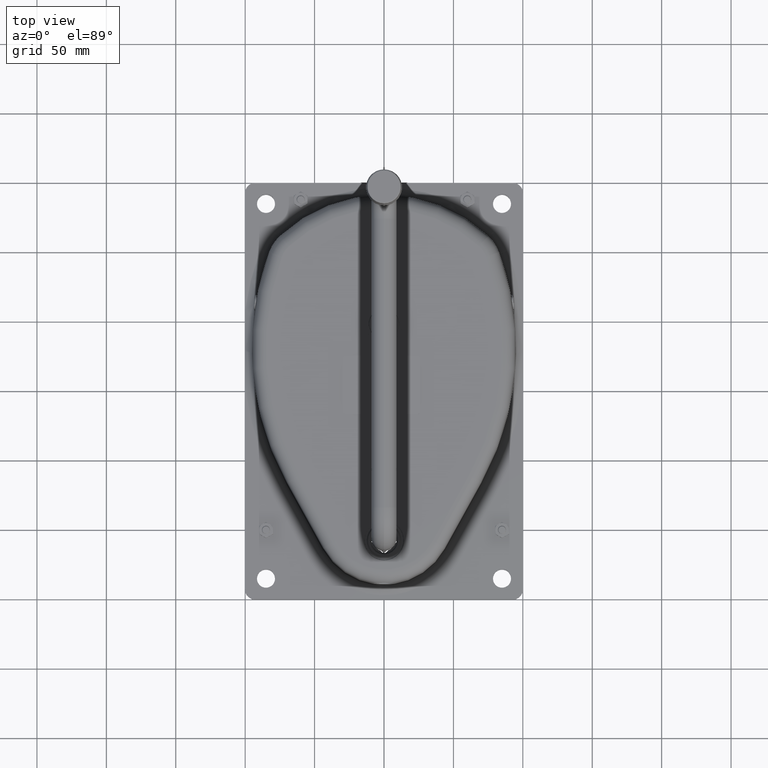
[diagram: clean part render]
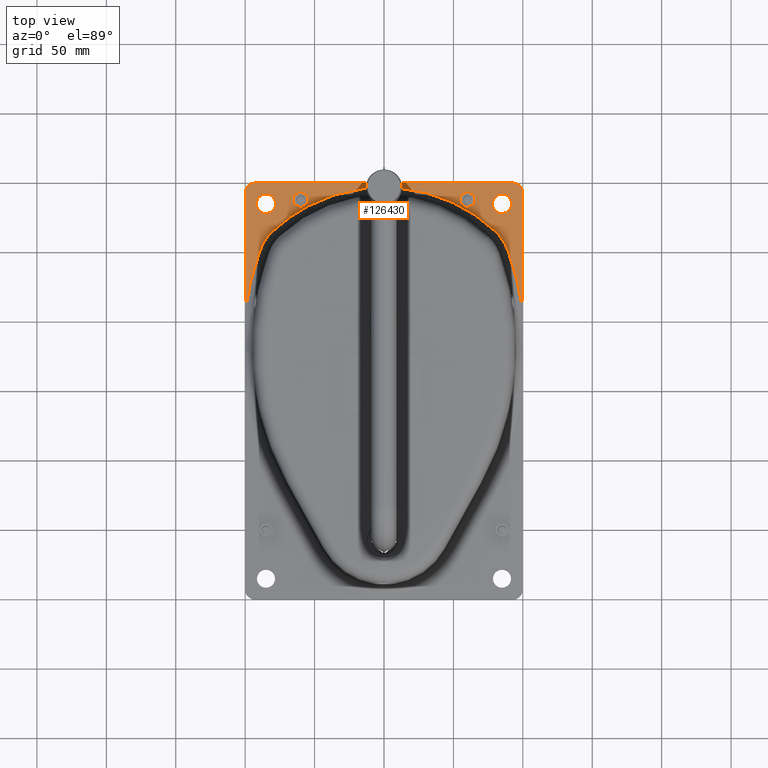
[diagram: same view with one face highlighted and labeled with its STEP entity id]
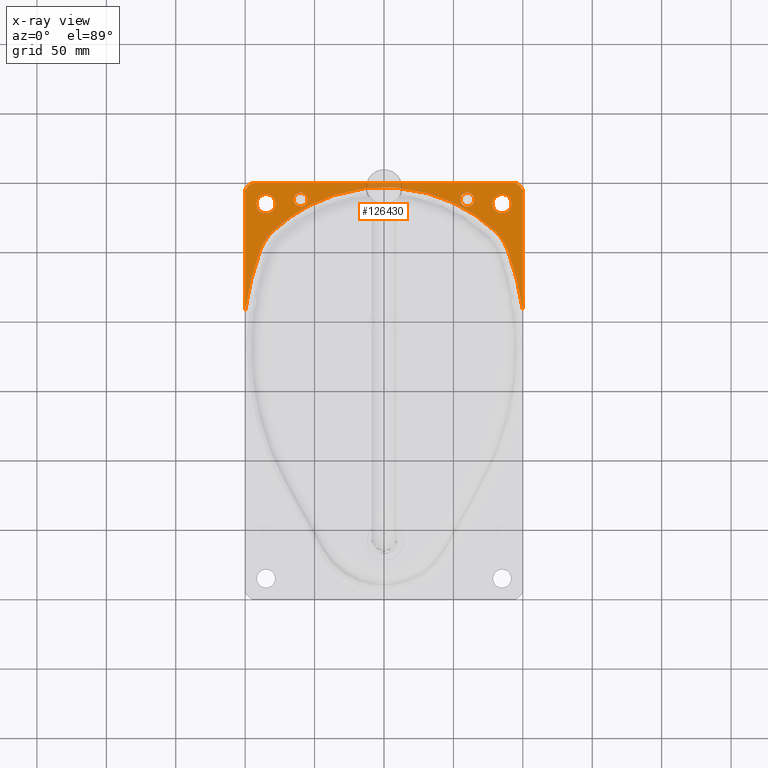
[diagram: x-ray of the same camera — body ghosted, the highlighted face saturated]
A machine part, top view. The second image highlights one B-rep face of the part: STEP entity #126430.
The next image is the same camera in x-ray: the body ghosted, the highlighted face saturated — about 2% of this face is hidden behind the body in this view.
In plain terms, the highlighted planar face has unit normal (0, 0, 1).
Its self-contained STEP definition (entity closure, byte-faithful):
#116550=CARTESIAN_POINT('',(98.1871716525991,-104.729553244837,80.));
#116560=DIRECTION('',(0.0174524064372835,0.999847695156391,0.));
#116570=VECTOR('',#116560,1.);
#116580=LINE('',#116550,#116570);
#117610=CARTESIAN_POINT('',(99.780482113474,-13.4488580754262,80.));
#117620=VERTEX_POINT('',#117610);
#117650=CARTESIAN_POINT('',(98.3093384976601,-97.7306193787422,80.));
#117660=VERTEX_POINT('',#117650);
#117670=EDGE_CURVE('',#117660,#117620,#116580,.T.);
#118950=CARTESIAN_POINT('',(-101.660200533618,-94.2401380912856,80.));
#118960=VERTEX_POINT('',#118950);
#118990=CARTESIAN_POINT('',(-96.5466454474941,198.715236589537,80.));
#119000=DIRECTION('',(-0.0174524064372835,-0.999847695156391,0.));
#119010=VECTOR('',#119000,1.);
#119020=LINE('',#118990,#119010);
#119030=CARTESIAN_POINT('',(-100.189056918394,-9.95837682173562,80.));
#119040=VERTEX_POINT('',#119030);
#119050=EDGE_CURVE('',#119040,#118960,#119020,.T.);
#121190=CARTESIAN_POINT('',(-96.5466454474941,198.715236589537,80.));
#121200=DIRECTION('',(0.,-0.,-1.));
#121210=DIRECTION('',(0.999847695156391,-0.0174524064372835,0.));
#121220=AXIS2_PLACEMENT_3D('',#121190,#121200,#121210);
#121230=PLANE('',#121220);
#122710=CARTESIAN_POINT('',(-90.3200556012915,-52.5797952541012,80.));
#122720=CARTESIAN_POINT('',(-90.4410247330788,-52.2299720672284,80.));
#122730=CARTESIAN_POINT('',(-90.5613935581654,-51.8799412792595,80.));
#122740=CARTESIAN_POINT('',(-93.1036679221178,-44.4102403549494,80.));
#122750=CARTESIAN_POINT('',(-95.1371604526582,-37.1634754640695,80.));
#122760=CARTESIAN_POINT('',(-98.6279890318529,-21.4846917592984,80.));
#122770=CARTESIAN_POINT('',(-99.9663917189243,-13.0410837653149,80.));
#122780=CARTESIAN_POINT('',(-101.592365611007,3.963061561107,80.));
#122790=CARTESIAN_POINT('',(-101.87837841351,12.5073013977237,80.));
#122800=CARTESIAN_POINT('',(-101.393175298389,29.5821169851113,80.));
#122810=CARTESIAN_POINT('',(-100.622424419963,38.0963275066738,80.));
#122820=CARTESIAN_POINT('',(-98.0334641733759,54.98069999351,80.));
#122830=CARTESIAN_POINT('',(-96.2177361747872,63.3346792583405,80.));
#122840=CARTESIAN_POINT('',(-91.5646099776627,79.7704075971235,80.));
#122850=CARTESIAN_POINT('',(-88.7316715331054,87.8364039702585,80.));
#122860=CARTESIAN_POINT('',(-82.2295584163411,103.231153784188,80.));
#122870=CARTESIAN_POINT('',(-78.6077773218684,110.562905684943,80.));
#122880=CARTESIAN_POINT('',(-74.3790964269654,117.98268360638,80.));
#122890=CARTESIAN_POINT('',(-74.194800907864,118.30368817892,80.));
#122900=CARTESIAN_POINT('',(-74.0099550838915,118.624375537057,80.));
#122910=B_SPLINE_CURVE_WITH_KNOTS('',3,(#122710,#122720,#122730,#122740,
#122750,#122760,#122770,#122780,#122790,#122800,#122810,#122820,#122830,
#122840,#122850,#122860,#122870,#122880,#122890,#122900),.UNSPECIFIED.,
.F.,.F.,(4,2,2,2,2,2,2,2,2,4),(0.,1.09154099031254,23.268442179075,
48.4497372926723,73.6310324062694,98.812327522146,123.993622638023,
149.1749177539,173.264853735063,174.356256054814),.UNSPECIFIED.);
#123440=CARTESIAN_POINT('',(78.1048012218286,115.969202589201,80.));
#123450=CARTESIAN_POINT('',(78.2783435235066,115.642257850143,80.));
#123460=CARTESIAN_POINT('',(78.4513247808119,115.315015293084,80.));
#123470=CARTESIAN_POINT('',(82.1166719008934,108.327539262062,80.));
#123480=CARTESIAN_POINT('',(85.2449121594937,101.481751791104,80.));
#123490=CARTESIAN_POINT('',(91.1151911316954,86.5301643393107,80.));
#123500=CARTESIAN_POINT('',(93.7415130621304,78.3945469179629,80.));
#123510=CARTESIAN_POINT('',(97.9739898743574,61.8455019481236,80.));
#123520=CARTESIAN_POINT('',(99.5760881704265,53.4479357079229,80.));
#123530=CARTESIAN_POINT('',(101.733629224764,36.503031871381,80.));
#123540=CARTESIAN_POINT('',(102.287004103772,27.9719349912778,80.));
#123550=CARTESIAN_POINT('',(102.336615614319,10.8902989987907,80.));
#123560=CARTESIAN_POINT('',(101.832804696076,2.35613165258269,80.));
#123570=CARTESIAN_POINT('',(99.7737279880781,-14.60101883305,80.));
#123580=CARTESIAN_POINT('',(98.220435704984,-23.0077495185009,80.));
#123590=CARTESIAN_POINT('',(94.1737920846206,-39.2219553976427,80.));
#123600=CARTESIAN_POINT('',(91.7277288157936,-47.0250739239347,80.));
#123610=CARTESIAN_POINT('',(88.6956407748134,-55.0088880899112,80.));
#123620=CARTESIAN_POINT('',(88.5631299669679,-55.3545029902722,80.));
#123630=CARTESIAN_POINT('',(88.430026570216,-55.6998895065706,80.));
#123640=B_SPLINE_CURVE_WITH_KNOTS('',3,(#123440,#123450,#123460,#123470,
#123480,#123490,#123500,#123510,#123520,#123530,#123540,#123550,#123560,
#123570,#123580,#123590,#123600,#123610,#123620,#123630),.UNSPECIFIED.,
.F.,.F.,(4,2,2,2,2,2,2,2,2,4),(0.,1.09154099010989,23.2684421705911,
48.449737284188,73.6310323977846,98.812327515783,123.993622633781,
149.17491775178,173.264853736531,174.356256054546),.UNSPECIFIED.);
#123950=CARTESIAN_POINT('',(-79.5239319886793,-86.6253094716546,80.));
#123960=VERTEX_POINT('',#123950);
#123990=CARTESIAN_POINT('',(-86.522865854774,-86.5031426265936,80.));
#124000=DIRECTION('',(0.,-0.,-1.));
#124010=DIRECTION('',(0.999847695156391,-0.0174524064372835,0.));
#124020=AXIS2_PLACEMENT_3D('',#123990,#124000,#124010);
#124030=CIRCLE('',#124020,7.);
#124040=CARTESIAN_POINT('',(-93.5217997208687,-86.3809757815326,80.));
#124050=VERTEX_POINT('',#124040);
#124060=EDGE_CURVE('',#124050,#123960,#124030,.T.);
#124180=CARTESIAN_POINT('',(83.4512423218125,-89.4700517209318,80.));
#124190=DIRECTION('',(0.,-0.,-1.));
#124200=DIRECTION('',(0.999847695156391,-0.0174524064372835,0.));
#124210=AXIS2_PLACEMENT_3D('',#124180,#124190,#124200);
#124220=CIRCLE('',#124210,7.);
#124230=CARTESIAN_POINT('',(90.4501761879072,-89.5922185659928,80.));
#124240=VERTEX_POINT('',#124230);
#124250=CARTESIAN_POINT('',(76.4523084557178,-89.3478848758708,80.));
#124260=VERTEX_POINT('',#124250);
#124270=EDGE_CURVE('',#124240,#124260,#124220,.T.);
#124280=ORIENTED_EDGE('',*,*,#124270,.F.);
#124290=EDGE_CURVE('',#124260,#124240,#124220,.T.);
#124300=ORIENTED_EDGE('',*,*,#124290,.F.);
#124310=EDGE_LOOP('',(#124300,#124280));
#124320=FACE_BOUND('',#124310,.T.);
#124330=CARTESIAN_POINT('',(-61.5790306951761,-89.9389958729949,
79.9999999999999));
#124340=DIRECTION('',(3.20595505212568E-18,1.8366904192622E-16,-1.));
#124350=DIRECTION('',(-0.999847695156391,0.0174524064372835,
6.93334779979405E-33));
#124360=AXIS2_PLACEMENT_3D('',#124330,#124340,#124350);
#124370=CIRCLE('',#124360,5.0000000000001);
#124380=CARTESIAN_POINT('',(-59.0038403206257,-85.6531593694842,
79.9999999999999));
#124390=VERTEX_POINT('',#124380);
#124400=CARTESIAN_POINT('',(-56.5797922193941,-90.0262579051813,
79.9999999999999));
#124410=VERTEX_POINT('',#124400);
#124420=EDGE_CURVE('',#124390,#124410,#124370,.T.);
#124430=ORIENTED_EDGE('',*,*,#124420,.F.);
#124440=CARTESIAN_POINT('',(-61.5790306951761,-89.9389958729949,
79.9999999999999));
#124450=DIRECTION('',(3.20595505212568E-18,1.8366904192622E-16,-1.));
#124460=DIRECTION('',(-0.999847695156391,0.0174524064372835,
6.93334779979405E-33));
#124470=AXIS2_PLACEMENT_3D('',#124440,#124450,#124460);
#124480=CIRCLE('',#124470,5.0000000000001);
#124490=CARTESIAN_POINT('',(-59.1549825939444,-94.312094408692,
79.9999999999999));
#124500=VERTEX_POINT('',#124490);
#124510=EDGE_CURVE('',#124410,#124500,#124480,.T.);
#124520=ORIENTED_EDGE('',*,*,#124510,.F.);
#124530=CARTESIAN_POINT('',(-61.5790306951761,-89.9389958729949,
79.9999999999999));
#124540=DIRECTION('',(3.20595505212568E-18,1.8366904192622E-16,-1.));
#124550=DIRECTION('',(-0.999847695156391,0.0174524064372835,
6.93334779979405E-33));
#124560=AXIS2_PLACEMENT_3D('',#124530,#124540,#124550);
#124570=CIRCLE('',#124560,5.0000000000001);
#124580=CARTESIAN_POINT('',(-64.1542210697265,-94.2248323765055,
79.9999999999999));
#124590=VERTEX_POINT('',#124580);
#124600=EDGE_CURVE('',#124500,#124590,#124570,.T.);
#124610=ORIENTED_EDGE('',*,*,#124600,.F.);
#124620=CARTESIAN_POINT('',(-61.5790306951761,-89.9389958729949,
79.9999999999999));
#124630=DIRECTION('',(3.20595505212568E-18,1.8366904192622E-16,-1.));
#124640=DIRECTION('',(-0.999847695156391,0.0174524064372835,
6.93334779979405E-33));
#124650=AXIS2_PLACEMENT_3D('',#124620,#124630,#124640);
#124660=CIRCLE('',#124650,5.0000000000001);
#124670=CARTESIAN_POINT('',(-66.5782691709582,-89.8517338408084,
79.9999999999999));
#124680=VERTEX_POINT('',#124670);
#124690=EDGE_CURVE('',#124590,#124680,#124660,.T.);
#124700=ORIENTED_EDGE('',*,*,#124690,.F.);
#124710=CARTESIAN_POINT('',(-61.5790306951761,-89.9389958729949,
79.9999999999999));
#124720=DIRECTION('',(3.20595505212568E-18,1.8366904192622E-16,-1.));
#124730=DIRECTION('',(-0.999847695156391,0.0174524064372835,
6.93334779979405E-33));
#124740=AXIS2_PLACEMENT_3D('',#124710,#124720,#124730);
#124750=CIRCLE('',#124740,5.0000000000001);
#124760=CARTESIAN_POINT('',(-64.0030787964078,-85.5658973372978,
79.9999999999999));
#124770=VERTEX_POINT('',#124760);
#124780=EDGE_CURVE('',#124680,#124770,#124750,.T.);
#124790=ORIENTED_EDGE('',*,*,#124780,.F.);
#124800=CARTESIAN_POINT('',(-61.5790306951761,-89.9389958729949,
79.9999999999999));
#124810=DIRECTION('',(3.20595505212568E-18,1.8366904192622E-16,-1.));
#124820=DIRECTION('',(-0.999847695156391,0.0174524064372835,
6.93334779979405E-33));
#124830=AXIS2_PLACEMENT_3D('',#124800,#124810,#124820);
#124840=CIRCLE('',#124830,5.0000000000001);
#124850=EDGE_CURVE('',#124770,#124390,#124840,.T.);
#124860=ORIENTED_EDGE('',*,*,#124850,.F.);
#124870=EDGE_LOOP('',(#124860,#124790,#124700,#124610,#124520,#124430));
#124880=FACE_BOUND('',#124870,.T.);
#124890=CARTESIAN_POINT('',(58.4026927235909,-92.0332846454689,
79.9999999999999));
#124900=DIRECTION('',(3.20595505212568E-18,1.8366904192622E-16,-1.));
#124910=DIRECTION('',(-0.999847695156391,0.0174524064372835,
6.93334779979405E-33));
#124920=AXIS2_PLACEMENT_3D('',#124890,#124900,#124910);
#124930=CIRCLE('',#124920,5.0000000000001);
#124940=CARTESIAN_POINT('',(53.4034542478088,-91.9460226132824,
79.9999999999999));
#124950=VERTEX_POINT('',#124940);
#124960=CARTESIAN_POINT('',(55.9786446223592,-87.6601861097718,
79.9999999999999));
#124970=VERTEX_POINT('',#124960);
#124980=EDGE_CURVE('',#124950,#124970,#124930,.T.);
#124990=ORIENTED_EDGE('',*,*,#124980,.F.);
#125000=CARTESIAN_POINT('',(58.4026927235909,-92.0332846454689,
79.9999999999999));
#125010=DIRECTION('',(3.20595505212568E-18,1.8366904192622E-16,-1.));
#125020=DIRECTION('',(-0.999847695156391,0.0174524064372835,
6.93334779979405E-33));
#125030=AXIS2_PLACEMENT_3D('',#125000,#125010,#125020);
#125040=CIRCLE('',#125030,5.0000000000001);
#125050=CARTESIAN_POINT('',(60.9778830981412,-87.7474481419583,
79.9999999999999));
#125060=VERTEX_POINT('',#125050);
#125070=EDGE_CURVE('',#124970,#125060,#125040,.T.);
#125080=ORIENTED_EDGE('',*,*,#125070,.F.);
#125090=CARTESIAN_POINT('',(58.4026927235909,-92.0332846454689,
79.9999999999999));
#125100=DIRECTION('',(3.20595505212568E-18,1.8366904192622E-16,-1.));
#125110=DIRECTION('',(-0.999847695156391,0.0174524064372835,
6.93334779979405E-33));
#125120=AXIS2_PLACEMENT_3D('',#125090,#125100,#125110);
#125130=CIRCLE('',#125120,5.0000000000001);
#125140=CARTESIAN_POINT('',(63.4019311993729,-92.1205466776553,
79.9999999999999));
#125150=VERTEX_POINT('',#125140);
#125160=EDGE_CURVE('',#125060,#125150,#125130,.T.);
#125170=ORIENTED_EDGE('',*,*,#125160,.F.);
#125180=CARTESIAN_POINT('',(58.4026927235909,-92.0332846454689,
79.9999999999999));
#125190=DIRECTION('',(3.20595505212568E-18,1.8366904192622E-16,-1.));
#125200=DIRECTION('',(-0.999847695156391,0.0174524064372835,
6.93334779979405E-33));
#125210=AXIS2_PLACEMENT_3D('',#125180,#125190,#125200);
#125220=CIRCLE('',#125210,5.0000000000001);
#125230=CARTESIAN_POINT('',(60.8267408248225,-96.406383181166,
79.9999999999999));
#125240=VERTEX_POINT('',#125230);
#125250=EDGE_CURVE('',#125150,#125240,#125220,.T.);
#125260=ORIENTED_EDGE('',*,*,#125250,.F.);
#125270=CARTESIAN_POINT('',(58.4026927235909,-92.0332846454689,
79.9999999999999));
#125280=DIRECTION('',(3.20595505212568E-18,1.8366904192622E-16,-1.));
#125290=DIRECTION('',(-0.999847695156391,0.0174524064372835,
6.93334779979405E-33));
#125300=AXIS2_PLACEMENT_3D('',#125270,#125280,#125290);
#125310=CIRCLE('',#125300,5.0000000000001);
#125320=CARTESIAN_POINT('',(55.8275023490405,-96.3191211489795,
79.9999999999999));
#125330=VERTEX_POINT('',#125320);
#125340=EDGE_CURVE('',#125240,#125330,#125310,.T.);
#125350=ORIENTED_EDGE('',*,*,#125340,.F.);
#125360=CARTESIAN_POINT('',(58.4026927235909,-92.0332846454689,
79.9999999999999));
#125370=DIRECTION('',(3.20595505212568E-18,1.8366904192622E-16,-1.));
#125380=DIRECTION('',(-0.999847695156391,0.0174524064372835,
6.93334779979405E-33));
#125390=AXIS2_PLACEMENT_3D('',#125360,#125370,#125380);
#125400=CIRCLE('',#125390,5.0000000000001);
#125410=EDGE_CURVE('',#125330,#124950,#125400,.T.);
#125420=ORIENTED_EDGE('',*,*,#125410,.F.);
#125430=EDGE_LOOP('',(#125420,#125350,#125260,#125170,#125080,#124990));
#125440=FACE_BOUND('',#125430,.T.);
#125450=EDGE_CURVE('',#123960,#124050,#124030,.T.);
#125460=ORIENTED_EDGE('',*,*,#125450,.F.);
#125470=ORIENTED_EDGE('',*,*,#124060,.F.);
#125480=EDGE_LOOP('',(#125470,#125460));
#125490=FACE_BOUND('',#125480,.T.);
#125500=CARTESIAN_POINT('',(91.3104046315654,-97.6084525336812,80.));
#125510=DIRECTION('',(0.,-0.,-1.));
#125520=DIRECTION('',(0.999847695156391,-0.0174524064372835,0.));
#125530=AXIS2_PLACEMENT_3D('',#125500,#125510,#125520);
#125540=CIRCLE('',#125530,7.);
#125550=CARTESIAN_POINT('',(91.1882377865044,-104.607386399776,80.));
#125560=VERTEX_POINT('',#125550);
#125570=EDGE_CURVE('',#117660,#125560,#125540,.T.);
#125580=ORIENTED_EDGE('',*,*,#125570,.T.);
#125590=ORIENTED_EDGE('',*,*,#117670,.F.);
#125600=CARTESIAN_POINT('',(88.430026570216,-55.6998895065706,80.));
#125610=VERTEX_POINT('',#125600);
#125620=EDGE_CURVE('',#117620,#125610,#123640,.T.);
#125630=ORIENTED_EDGE('',*,*,#125620,.F.);
#125640=CARTESIAN_POINT('',(88.430026570216,-55.6998895065706,80.));
#125650=CARTESIAN_POINT('',(88.2829722407023,-56.0778836763042,80.));
#125660=CARTESIAN_POINT('',(88.1317461607493,-56.4542532071847,80.));
#125670=CARTESIAN_POINT('',(87.5328713401354,-57.8659842397067,80.));
#125680=CARTESIAN_POINT('',(87.0447510554527,-58.8845681548422,80.));
#125690=CARTESIAN_POINT('',(85.5073234915129,-61.7481517398949,80.));
#125700=CARTESIAN_POINT('',(84.3456618286415,-63.5265507276977,80.));
#125710=CARTESIAN_POINT('',(81.9806855068091,-66.5454527955084,80.));
#125720=CARTESIAN_POINT('',(80.8310121532727,-67.8197350504433,80.));
#125730=CARTESIAN_POINT('',(79.3057038006072,-69.2909071817456,80.));
#125740=CARTESIAN_POINT('',(79.0085070067546,-69.5667733612238,80.));
#125750=CARTESIAN_POINT('',(78.7083018838568,-69.8393283219234,80.));
#125760=B_SPLINE_CURVE_WITH_KNOTS('',3,(#125640,#125650,#125660,#125670,
#125680,#125690,#125700,#125710,#125720,#125730,#125740,#125750),
.UNSPECIFIED.,.F.,.F.,(4,2,2,2,2,4),(0.,1.10296859692646,
4.17019979192753,9.92578331095837,14.5803621224675,15.6816753343745),
.UNSPECIFIED.);
#125770=CARTESIAN_POINT('',(78.7083018838568,-69.8393283219234,80.));
#125780=VERTEX_POINT('',#125770);
#125790=EDGE_CURVE('',#125610,#125780,#125760,.T.);
#125800=ORIENTED_EDGE('',*,*,#125790,.F.);
#125810=CARTESIAN_POINT('',(78.7083018838568,-69.8393283219234,80.));
#125820=CARTESIAN_POINT('',(78.4293201908123,-70.0908098874992,80.));
#125830=CARTESIAN_POINT('',(78.1495574469873,-70.3414250189458,80.));
#125840=CARTESIAN_POINT('',(73.1797257397408,-74.7429271057852,80.));
#125850=CARTESIAN_POINT('',(68.1610995856646,-78.5158636820717,80.));
#125860=CARTESIAN_POINT('',(54.692917593602,-87.0383807059084,80.));
#125870=CARTESIAN_POINT('',(45.9176607747844,-91.1743160981825,80.));
#125880=CARTESIAN_POINT('',(27.5506215091759,-97.1937388493579,80.));
#125890=CARTESIAN_POINT('',(18.0295734146755,-99.0540444660465,80.));
#125900=CARTESIAN_POINT('',(-1.2524032621029,-100.390815605004,80.));
#125910=CARTESIAN_POINT('',(-10.9390739244523,-99.8621330117098,80.));
#125920=CARTESIAN_POINT('',(-29.9610333874464,-96.434795877726,80.));
#125930=CARTESIAN_POINT('',(-39.2230656352819,-93.5493405505153,80.));
#125940=CARTESIAN_POINT('',(-54.1306126513169,-86.7890092953691,80.));
#125950=CARTESIAN_POINT('',(-59.9874285031566,-83.5002375101533,80.));
#125960=CARTESIAN_POINT('',(-70.7625497297776,-76.1671799740958,80.));
#125970=CARTESIAN_POINT('',(-75.6967737734782,-72.1879822932209,80.));
#125980=CARTESIAN_POINT('',(-80.5568525818179,-67.5711741823742,80.));
#125990=CARTESIAN_POINT('',(-80.8276877694983,-67.3109583073274,80.));
#126000=CARTESIAN_POINT('',(-81.0977122450357,-67.0499038891391,80.));
#126010=B_SPLINE_CURVE_WITH_KNOTS('',3,(#125810,#125820,#125830,#125840,
#125850,#125860,#125870,#125880,#125890,#125900,#125910,#125920,#125930,
#125940,#125950,#125960,#125970,#125980,#125990,#126000),.UNSPECIFIED.,
.F.,.F.,(4,2,2,2,2,2,2,2,2,4),(0.,1.09432074039033,19.3421558232551,
47.4499546697541,75.557753516253,103.665552362752,131.773351209251,
151.273611776488,169.681393608144,170.773978615288),.UNSPECIFIED.);
#126020=CARTESIAN_POINT('',(-81.0977122450357,-67.0499038891391,80.));
#126030=VERTEX_POINT('',#126020);
#126040=EDGE_CURVE('',#125780,#126030,#126010,.T.);
#126050=ORIENTED_EDGE('',*,*,#126040,.F.);
#126060=CARTESIAN_POINT('',(-81.0977122450357,-67.0499038891391,80.));
#126070=CARTESIAN_POINT('',(-81.3883065978535,-66.7669560312363,80.));
#126080=CARTESIAN_POINT('',(-81.6757766487553,-66.4808016657838,80.));
#126090=CARTESIAN_POINT('',(-82.7417020837762,-65.378332379748,80.));
#126100=CARTESIAN_POINT('',(-83.4889117989804,-64.531306850893,80.));
#126110=CARTESIAN_POINT('',(-85.5250968208241,-61.9979799828131,80.));
#126120=CARTESIAN_POINT('',(-86.7088949539029,-60.2342388571329,80.));
#126130=CARTESIAN_POINT('',(-88.5650150162606,-56.8783930605932,80.));
#126140=CARTESIAN_POINT('',(-89.2893764100816,-55.3224866830091,80.));
#126150=CARTESIAN_POINT('',(-90.0483643005628,-53.3438885954145,80.));
#126160=CARTESIAN_POINT('',(-90.186321390706,-52.9625804201345,80.));
#126170=CARTESIAN_POINT('',(-90.3200556012915,-52.5797952541012,80.));
#126180=B_SPLINE_CURVE_WITH_KNOTS('',3,(#126060,#126070,#126080,#126090,
#126100,#126110,#126120,#126130,#126140,#126150,#126160,#126170),
.UNSPECIFIED.,.F.,.F.,(4,2,2,2,2,4),(0.,1.1029685969268,4.17019979257199
,9.92578331128115,14.5803621224686,15.6816753343758),.UNSPECIFIED.);
#126190=CARTESIAN_POINT('',(-90.3200556012915,-52.5797952541012,80.));
#126200=VERTEX_POINT('',#126190);
#126210=EDGE_CURVE('',#126030,#126200,#126180,.T.);
#126220=ORIENTED_EDGE('',*,*,#126210,.F.);
#126230=EDGE_CURVE('',#126200,#119040,#122910,.T.);
#126240=ORIENTED_EDGE('',*,*,#126230,.F.);
#126250=ORIENTED_EDGE('',*,*,#119050,.F.);
#126260=CARTESIAN_POINT('',(-94.6612666675234,-94.3623049363465,80.));
#126270=DIRECTION('',(0.,-0.,-1.));
#126280=DIRECTION('',(0.999847695156391,-0.0174524064372835,0.));
#126290=AXIS2_PLACEMENT_3D('',#126260,#126270,#126280);
#126300=CIRCLE('',#126290,7.);
#126310=CARTESIAN_POINT('',(-94.7834335125845,-101.361238802441,80.));
#126320=VERTEX_POINT('',#126310);
#126330=EDGE_CURVE('',#126320,#118960,#126300,.T.);
#126340=ORIENTED_EDGE('',*,*,#126330,.T.);
#126350=CARTESIAN_POINT('',(-101.782367378679,-101.23907195738,80.));
#126360=DIRECTION('',(0.999847695156391,-0.0174524064372835,0.));
#126370=VECTOR('',#126360,1.);
#126380=LINE('',#126350,#126370);
#126390=EDGE_CURVE('',#126320,#125560,#126380,.T.);
#126400=ORIENTED_EDGE('',*,*,#126390,.F.);
#126410=EDGE_LOOP('',(#126400,#126340,#126250,#126240,#126220,#126050,
#125800,#125630,#125590,#125580));
#126420=FACE_OUTER_BOUND('',#126410,.T.);
#126430=ADVANCED_FACE('',(#124320,#124880,#125440,#125490,#126420),
#121230,.T.);